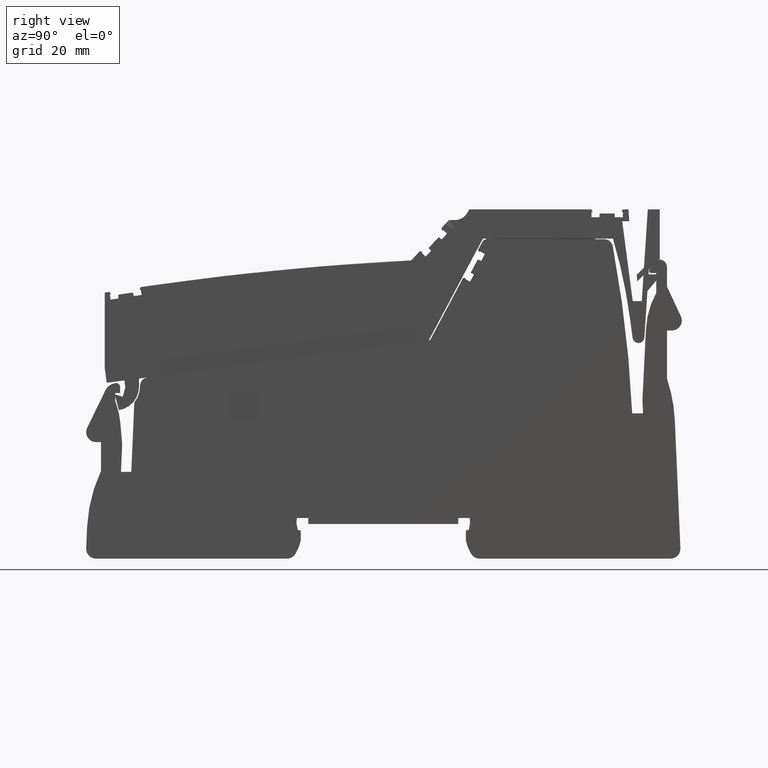
[diagram: clean part render]
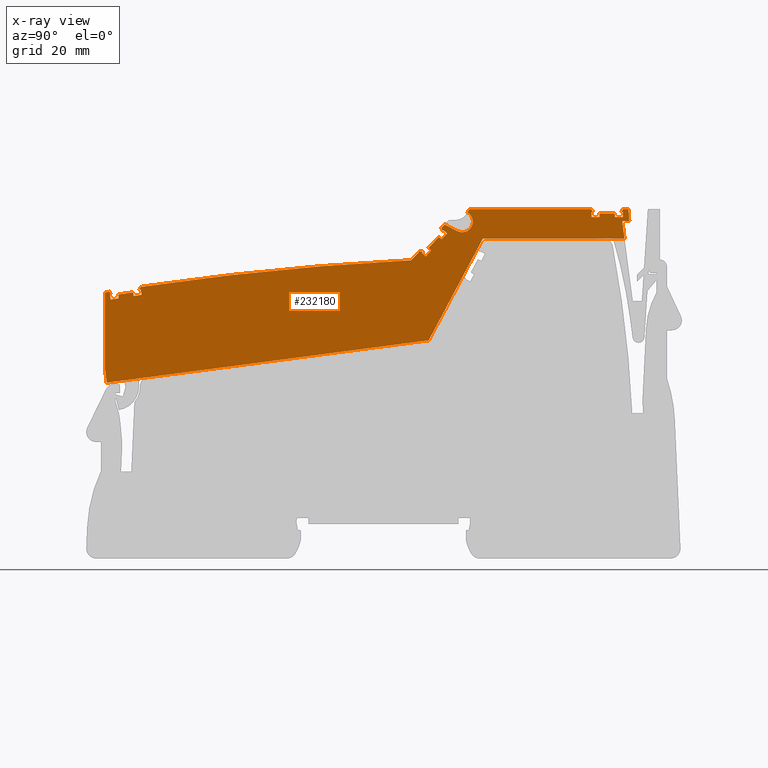
[diagram: x-ray — body ghosted, one internal face saturated and labeled with its STEP entity id]
A machine part, right view, then the same camera in x-ray: the body is ghosted and one INTERNAL B-rep face — a face not visible from any outside direction — is saturated and labeled: STEP entity #232180.
In plain terms, the highlighted planar face has unit normal (1, 0, 0).
Its self-contained STEP definition (entity closure, byte-faithful):
#228080=CARTESIAN_POINT('',(82.6815349965882,79.1094320933787,-35.425));
#228090=DIRECTION('',(0.,-0.,1.));
#228100=DIRECTION('',(0.99144486137381,0.130526192220052,0.));
#228110=AXIS2_PLACEMENT_3D('',#228080,#228090,#228100);
#228120=PLANE('',#228110);
#228130=CARTESIAN_POINT('',(1.4210854715202E-14,123.952271663143,-35.425
));
#228140=DIRECTION('',(0.887010833178214,-0.461748613235049,0.));
#228150=VECTOR('',#228140,1.);
#228160=LINE('',#228130,#228150);
#228170=CARTESIAN_POINT('',(81.7124060542132,81.4154854500132,-35.425));
#228180=VERTEX_POINT('',#228170);
#228190=CARTESIAN_POINT('',(84.2556033003072,80.0915807606427,-35.425));
#228200=VERTEX_POINT('',#228190);
#228210=EDGE_CURVE('',#228180,#228200,#228160,.T.);
#228220=ORIENTED_EDGE('',*,*,#228210,.F.);
#228230=CARTESIAN_POINT('',(85.2483628187626,81.9986540519759,-35.425));
#228240=DIRECTION('',(-8.85927774418128E-33,0.,1.));
#228250=DIRECTION('',(0.99144486137381,0.130526192220052,
8.7834853949519E-33));
#228260=AXIS2_PLACEMENT_3D('',#228230,#228240,#228250);
#228270=CIRCLE('',#228260,2.15000000000011);
#228280=CARTESIAN_POINT('',(86.323362818763,83.8606086701124,-35.425));
#228290=VERTEX_POINT('',#228280);
#228300=EDGE_CURVE('',#228200,#228290,#228270,.T.);
#228310=ORIENTED_EDGE('',*,*,#228300,.F.);
#228320=CARTESIAN_POINT('',(37.9064178286642,-1.4210854715202E-14,
-35.425));
#228330=DIRECTION('',(-0.500000000000028,-0.866025403784423,0.));
#228340=VECTOR('',#228330,1.);
#228350=LINE('',#228320,#228340);
#228360=CARTESIAN_POINT('',(86.6847904689085,84.4866197234245,-35.425));
#228370=VERTEX_POINT('',#228360);
#228380=EDGE_CURVE('',#228370,#228290,#228350,.T.);
#228390=ORIENTED_EDGE('',*,*,#228380,.T.);
#228400=CARTESIAN_POINT('',(1.4210854715202E-14,84.4866197234245,-35.425
));
#228410=DIRECTION('',(-1.,0.,0.));
#228420=VECTOR('',#228410,1.);
#228430=LINE('',#228400,#228420);
#228440=CARTESIAN_POINT('',(111.280097074188,84.4866197234245,-35.425));
#228450=VERTEX_POINT('',#228440);
#228460=EDGE_CURVE('',#228450,#228370,#228430,.T.);
#228470=ORIENTED_EDGE('',*,*,#228460,.T.);
#228480=CARTESIAN_POINT('',(117.476804588516,73.7536074689866,-35.425));
#228490=DIRECTION('',(0.500000000000819,-0.866025403783966,
3.34767537788399E-17));
#228500=VECTOR('',#228490,1.);
#228510=LINE('',#228480,#228500);
#228520=CARTESIAN_POINT('',(111.586092716858,83.9566197234263,-35.425));
#228530=VERTEX_POINT('',#228520);
#228540=EDGE_CURVE('',#228450,#228530,#228510,.T.);
#228550=ORIENTED_EDGE('',*,*,#228540,.F.);
#228560=CARTESIAN_POINT('',(70.5167661636283,83.9566197232154,-35.425));
#228570=DIRECTION('',(-1.,-5.1373627574236E-12,-1.14423563262215E-17));
#228580=VECTOR('',#228570,1.);
#228590=LINE('',#228560,#228580);
#228600=CARTESIAN_POINT('',(111.313785095723,83.956619723425,-35.425));
#228610=VERTEX_POINT('',#228600);
#228620=EDGE_CURVE('',#228530,#228610,#228590,.T.);
#228630=ORIENTED_EDGE('',*,*,#228620,.F.);
#228640=CARTESIAN_POINT('',(111.313785095715,-1.4210854715202E-14,
-35.425));
#228650=DIRECTION('',(-9.34252675222069E-14,-1.,0.));
#228660=VECTOR('',#228650,1.);
#228670=LINE('',#228640,#228660);
#228680=CARTESIAN_POINT('',(111.313785095723,82.8866197234248,-35.425));
#228690=VERTEX_POINT('',#228680);
#228700=EDGE_CURVE('',#228610,#228690,#228670,.T.);
#228710=ORIENTED_EDGE('',*,*,#228700,.F.);
#228720=CARTESIAN_POINT('',(1.4210854715202E-14,82.8866197234115,-35.425
));
#228730=DIRECTION('',(1.,1.19154686117895E-13,0.));
#228740=VECTOR('',#228730,1.);
#228750=LINE('',#228720,#228740);
#228760=CARTESIAN_POINT('',(112.910668598078,82.886619723425,-35.425));
#228770=VERTEX_POINT('',#228760);
#228780=EDGE_CURVE('',#228690,#228770,#228750,.T.);
#228790=ORIENTED_EDGE('',*,*,#228780,.F.);
#228800=CARTESIAN_POINT('',(105.659029014286,-1.4210854715202E-14,
-35.425));
#228810=DIRECTION('',(0.087155742747754,0.996194698091737,0.));
#228820=VECTOR('',#228810,1.);
#228830=LINE('',#228800,#228820);
#228840=CARTESIAN_POINT('',(112.976285095723,83.6366197234249,-35.425));
#228850=VERTEX_POINT('',#228840);
#228860=EDGE_CURVE('',#228770,#228850,#228830,.T.);
#228870=ORIENTED_EDGE('',*,*,#228860,.F.);
#228880=CARTESIAN_POINT('',(70.5588949628286,83.6366197234257,-35.425));
#228890=DIRECTION('',(1.,-1.86795023893183E-14,1.14423563262215E-17));
#228900=VECTOR('',#228890,1.);
#228910=LINE('',#228880,#228900);
#228920=CARTESIAN_POINT('',(115.976285095723,83.6366197234249,-35.425));
#228930=VERTEX_POINT('',#228920);
#228940=EDGE_CURVE('',#228850,#228930,#228910,.T.);
#228950=ORIENTED_EDGE('',*,*,#228940,.F.);
#228960=CARTESIAN_POINT('',(123.293541177125,-1.4210854715202E-14,
-35.425));
#228970=DIRECTION('',(0.0871557427473462,-0.996194698091773,0.));
#228980=VECTOR('',#228970,1.);
#228990=LINE('',#228960,#228980);
#229000=CARTESIAN_POINT('',(116.041901593367,82.8866197234247,-35.425));
#229010=VERTEX_POINT('',#229000);
#229020=EDGE_CURVE('',#228930,#229010,#228990,.T.);
#229030=ORIENTED_EDGE('',*,*,#229020,.F.);
#229040=CARTESIAN_POINT('',(1.4210854715202E-14,82.8866197234154,-35.425
));
#229050=DIRECTION('',(1.,8.06021915877864E-14,0.));
#229060=VECTOR('',#229050,1.);
#229070=LINE('',#229040,#229060);
#229080=CARTESIAN_POINT('',(117.638785095723,82.8866197234249,-35.425));
#229090=VERTEX_POINT('',#229080);
#229100=EDGE_CURVE('',#229010,#229090,#229070,.T.);
#229110=ORIENTED_EDGE('',*,*,#229100,.F.);
#229120=CARTESIAN_POINT('',(117.638785095727,-1.4210854715202E-14,
-35.425));
#229130=DIRECTION('',(-5.49282841433296E-14,1.,0.));
#229140=VECTOR('',#229130,1.);
#229150=LINE('',#229120,#229140);
#229160=CARTESIAN_POINT('',(117.638785095723,83.9566197234248,-35.425));
#229170=VERTEX_POINT('',#229160);
#229180=EDGE_CURVE('',#229090,#229170,#229150,.T.);
#229190=ORIENTED_EDGE('',*,*,#229180,.F.);
#229200=CARTESIAN_POINT('',(70.5167661635693,83.9566197236635,-35.425));
#229210=DIRECTION('',(-1.,5.06689135093552E-12,-1.14423563262215E-17));
#229220=VECTOR('',#229210,1.);
#229230=LINE('',#229200,#229220);
#229240=CARTESIAN_POINT('',(117.366477474588,83.9566197234262,-35.425));
#229250=VERTEX_POINT('',#229240);
#229260=EDGE_CURVE('',#229170,#229250,#229230,.T.);
#229270=ORIENTED_EDGE('',*,*,#229260,.F.);
#229280=CARTESIAN_POINT('',(110.982106139763,72.8985641971313,-35.425));
#229290=DIRECTION('',(0.500000000000253,0.866025403784292,
-2.20343974524871E-17));
#229300=VECTOR('',#229290,1.);
#229310=LINE('',#229280,#229300);
#229320=CARTESIAN_POINT('',(117.672473117258,84.4866197234246,-35.425));
#229330=VERTEX_POINT('',#229320);
#229340=EDGE_CURVE('',#229250,#229330,#229310,.T.);
#229350=ORIENTED_EDGE('',*,*,#229340,.F.);
#229360=CARTESIAN_POINT('',(70.4469903398795,84.4866197234245,-35.425));
#229370=DIRECTION('',(-1.,-3.33066907387547E-15,-1.14423563262215E-17));
#229380=VECTOR('',#229370,1.);
#229390=LINE('',#229360,#229380);
#229400=CARTESIAN_POINT('',(118.776285095723,84.4866197234246,-35.425));
#229410=VERTEX_POINT('',#229400);
#229420=EDGE_CURVE('',#229410,#229330,#229390,.T.);
#229430=ORIENTED_EDGE('',*,*,#229420,.T.);
#229440=CARTESIAN_POINT('',(119.46262829087,74.0150461191697,-35.425));
#229450=DIRECTION('',(-0.0654031292301207,0.997858923238605,
-1.07067800097519E-18));
#229460=VECTOR('',#229450,1.);
#229470=LINE('',#229440,#229460);
#229480=CARTESIAN_POINT('',(118.933589406479,82.0866197234258,-35.425));
#229490=VERTEX_POINT('',#229480);
#229500=EDGE_CURVE('',#229490,#229410,#229470,.T.);
#229510=ORIENTED_EDGE('',*,*,#229500,.T.);
#229520=CARTESIAN_POINT('',(70.7629563340898,82.0866197234204,-35.425));
#229530=DIRECTION('',(-1.,-1.11688436277291E-13,-1.14423563262215E-17));
#229540=VECTOR('',#229530,1.);
#229550=LINE('',#229520,#229540);
#229560=CARTESIAN_POINT('',(117.512908656979,82.0866197234256,-35.425));
#229570=VERTEX_POINT('',#229560);
#229580=EDGE_CURVE('',#229490,#229570,#229550,.T.);
#229590=ORIENTED_EDGE('',*,*,#229580,.F.);
#229600=CARTESIAN_POINT('',(128.319817162075,-1.4210854715202E-14,
-35.425));
#229610=DIRECTION('',(0.130526192220052,-0.99144486137381,0.));
#229620=VECTOR('',#229610,1.);
#229630=LINE('',#229600,#229620);
#229640=CARTESIAN_POINT('',(117.973692398535,78.5866197234246,-35.425));
#229650=VERTEX_POINT('',#229640);
#229660=EDGE_CURVE('',#229570,#229650,#229630,.T.);
#229670=ORIENTED_EDGE('',*,*,#229660,.F.);
#229680=CARTESIAN_POINT('',(71.2237400756451,78.5866197234246,-35.425));
#229690=DIRECTION('',(1.,0.,1.14423563262215E-17));
#229700=VECTOR('',#229690,1.);
#229710=LINE('',#229680,#229700);
#229720=CARTESIAN_POINT('',(89.4233780495348,78.5866197234246,-35.425));
#229730=VERTEX_POINT('',#229720);
#229740=EDGE_CURVE('',#229730,#229650,#229710,.T.);
#229750=ORIENTED_EDGE('',*,*,#229740,.T.);
#229760=CARTESIAN_POINT('',(84.5486179871549,69.4185294618935,-35.425));
#229770=DIRECTION('',(0.469471562785891,0.882947592858927,
1.98252351633153E-18));
#229780=VECTOR('',#229770,1.);
#229790=LINE('',#229760,#229780);
#229800=CARTESIAN_POINT('',(78.5141517634814,58.0693491307922,-35.425));
#229810=VERTEX_POINT('',#229800);
#229820=EDGE_CURVE('',#229810,#229730,#229790,.T.);
#229830=ORIENTED_EDGE('',*,*,#229820,.T.);
#229840=CARTESIAN_POINT('',(74.0030776442306,57.4754549561902,-35.425));
#229850=DIRECTION('',(0.991444861373789,0.130526192220212,
2.03025052721141E-32));
#229860=VECTOR('',#229850,1.);
#229870=LINE('',#229840,#229860);
#229880=CARTESIAN_POINT('',(13.5745133434982,49.5198835403683,-35.425));
#229890=VERTEX_POINT('',#229880);
#229900=EDGE_CURVE('',#229890,#229810,#229870,.T.);
#229910=ORIENTED_EDGE('',*,*,#229900,.T.);
#229920=CARTESIAN_POINT('',(12.2086310606799,59.8947895075835,-35.425));
#229930=DIRECTION('',(0.130526192220052,-0.99144486137381,
-3.08148791101958E-32));
#229940=VECTOR('',#229930,1.);
#229950=LINE('',#229920,#229940);
#229960=CARTESIAN_POINT('',(13.1829347668366,52.4942181245001,-35.425));
#229970=VERTEX_POINT('',#229960);
#229980=EDGE_CURVE('',#229970,#229890,#229950,.T.);
#229990=ORIENTED_EDGE('',*,*,#229980,.T.);
#230000=CARTESIAN_POINT('',(13.1829347668366,60.0230590239077,-35.425));
#230010=DIRECTION('',(8.32667268468867E-17,-1.,-1.38777878078145E-17));
#230020=VECTOR('',#230010,1.);
#230030=LINE('',#230000,#230020);
#230040=CARTESIAN_POINT('',(13.1829347668366,67.701244428714,-35.425));
#230050=VERTEX_POINT('',#230040);
#230060=EDGE_CURVE('',#230050,#229970,#230030,.T.);
#230070=ORIENTED_EDGE('',*,*,#230060,.T.);
#230080=CARTESIAN_POINT('',(104.084452057128,-500.06799932646,-35.425));
#230090=DIRECTION('',(-8.85927774418128E-33,0.,1.));
#230100=DIRECTION('',(0.99144486137381,0.130526192220052,0.));
#230110=AXIS2_PLACEMENT_3D('',#230080,#230090,#230100);
#230120=CIRCLE('',#230110,575.);
#230130=CARTESIAN_POINT('',(14.0966316585303,67.8467761283693,-35.425));
#230140=VERTEX_POINT('',#230130);
#230150=EDGE_CURVE('',#230140,#230050,#230120,.T.);
#230160=ORIENTED_EDGE('',*,*,#230150,.T.);
#230170=CARTESIAN_POINT('',(19.676851164994,60.8779993368489,-35.425));
#230180=DIRECTION('',(0.625050010517978,-0.780584706711242,
2.1035385032723E-17));
#230190=VECTOR('',#230180,1.);
#230200=LINE('',#230170,#230190);
#230210=CARTESIAN_POINT('',(14.4727658909791,67.3770463074278,-35.425));
#230220=VERTEX_POINT('',#230210);
#230230=EDGE_CURVE('',#230140,#230220,#230200,.T.);
#230240=ORIENTED_EDGE('',*,*,#230230,.F.);
#230250=CARTESIAN_POINT('',(71.551517232091,76.0969050392932,-35.425));
#230260=DIRECTION('',(-0.988531191076977,-0.151016834385886,
3.70508301110601E-19));
#230270=VECTOR('',#230260,1.);
#230280=LINE('',#230250,#230270);
#230290=CARTESIAN_POINT('',(14.2035813139184,67.335923272505,-35.425));
#230300=VERTEX_POINT('',#230290);
#230310=EDGE_CURVE('',#230220,#230300,#230280,.T.);
#230320=ORIENTED_EDGE('',*,*,#230310,.F.);
#230330=CARTESIAN_POINT('',(24.4904170405679,-1.4210854715202E-14,
-35.425));
#230340=DIRECTION('',(0.151016834388983,-0.988531191076503,0.));
#230350=VECTOR('',#230340,1.);
#230360=LINE('',#230330,#230350);
#230370=CARTESIAN_POINT('',(14.3651693267146,66.2781948980529,-35.425));
#230380=VERTEX_POINT('',#230370);
#230390=EDGE_CURVE('',#230300,#230380,#230360,.T.);
#230400=ORIENTED_EDGE('',*,*,#230390,.F.);
#230410=CARTESIAN_POINT('',(1.4210854715202E-14,64.0836436114932,-35.425
));
#230420=DIRECTION('',(0.988531191076512,0.151016834388925,0.));
#230430=VECTOR('',#230420,1.);
#230440=LINE('',#230410,#230430);
#230450=CARTESIAN_POINT('',(15.9437384773085,66.5193511894665,-35.425));
#230460=VERTEX_POINT('',#230450);
#230470=EDGE_CURVE('',#230380,#230460,#230440,.T.);
#230480=ORIENTED_EDGE('',*,*,#230470,.F.);
#230490=CARTESIAN_POINT('',(20.2288651749482,-1.4210854715202E-14,
-35.425));
#230500=DIRECTION('',(-0.0642859995531953,0.997931515817316,0.));
#230510=VECTOR('',#230500,1.);
#230520=LINE('',#230490,#230510);
#230530=CARTESIAN_POINT('',(15.8953398060877,67.2706587785318,-35.425));
#230540=VERTEX_POINT('',#230530);
#230550=EDGE_CURVE('',#230460,#230540,#230520,.T.);
#230560=ORIENTED_EDGE('',*,*,#230550,.F.);
#230570=CARTESIAN_POINT('',(71.5932945613605,75.7795747186763,-35.425));
#230580=DIRECTION('',(0.988531191076507,0.151016834388962,
-3.70508301168148E-19));
#230590=VECTOR('',#230580,1.);
#230600=LINE('',#230570,#230590);
#230610=CARTESIAN_POINT('',(18.8609333793172,67.7237092816987,-35.425));
#230620=VERTEX_POINT('',#230610);
#230630=EDGE_CURVE('',#230540,#230620,#230600,.T.);
#230640=ORIENTED_EDGE('',*,*,#230630,.F.);
#230650=CARTESIAN_POINT('',(35.352486206355,-1.4210854715202E-14,-35.425
));
#230660=DIRECTION('',(0.236598339928087,-0.971607547080236,0.));
#230670=VECTOR('',#230660,1.);
#230680=LINE('',#230650,#230670);
#230690=CARTESIAN_POINT('',(19.0390599596794,66.9922200841493,-35.425));
#230700=VERTEX_POINT('',#230690);
#230710=EDGE_CURVE('',#230620,#230700,#230680,.T.);
#230720=ORIENTED_EDGE('',*,*,#230710,.F.);
#230730=CARTESIAN_POINT('',(1.4210854715202E-14,64.0836436114918,-35.425
));
#230740=DIRECTION('',(0.9885311910765,0.151016834389004,0.));
#230750=VECTOR('',#230740,1.);
#230760=LINE('',#230730,#230750);
#230770=CARTESIAN_POINT('',(20.6176291102735,67.2333763755631,-35.425));
#230780=VERTEX_POINT('',#230770);
#230790=EDGE_CURVE('',#230700,#230780,#230760,.T.);
#230800=ORIENTED_EDGE('',*,*,#230790,.F.);
#230810=CARTESIAN_POINT('',(30.8887988590628,-1.4210854715202E-14,
-35.425));
#230820=DIRECTION('',(-0.15101683438897,0.988531191076505,0.));
#230830=VECTOR('',#230820,1.);
#230840=LINE('',#230810,#230830);
#230850=CARTESIAN_POINT('',(20.4560410974773,68.2911047500148,-35.425));
#230860=VERTEX_POINT('',#230850);
#230870=EDGE_CURVE('',#230780,#230860,#230840,.T.);
#230880=ORIENTED_EDGE('',*,*,#230870,.F.);
#230890=CARTESIAN_POINT('',(71.5515172321112,76.0969050391398,-35.425));
#230900=DIRECTION('',(-0.988531191077486,-0.151016834382553,
3.70508301048238E-19));
#230910=VECTOR('',#230900,1.);
#230920=LINE('',#230890,#230910);
#230930=CARTESIAN_POINT('',(20.186856520418,68.2499817150929,-35.425));
#230940=VERTEX_POINT('',#230930);
#230950=EDGE_CURVE('',#230860,#230940,#230920,.T.);
#230960=ORIENTED_EDGE('',*,*,#230950,.F.);
#230970=CARTESIAN_POINT('',(17.182413559422,60.5496003959994,-35.425));
#230980=DIRECTION('',(0.363481180558057,0.931601541100122,
-1.0997552478088E-17));
#230990=VECTOR('',#230980,1.);
#231000=LINE('',#230970,#230990);
#231010=CARTESIAN_POINT('',(20.4055873620427,68.8105884260946,-35.425));
#231020=VERTEX_POINT('',#231010);
#231030=EDGE_CURVE('',#230940,#231020,#231000,.T.);
#231040=ORIENTED_EDGE('',*,*,#231030,.F.);
#231050=CARTESIAN_POINT('',(104.084452057128,-500.06799932646,-35.425));
#231060=DIRECTION('',(-8.85927774418128E-33,0.,1.));
#231070=DIRECTION('',(0.99144486137381,0.130526192220052,0.));
#231080=AXIS2_PLACEMENT_3D('',#231050,#231060,#231070);
#231090=CIRCLE('',#231080,575.);
#231100=CARTESIAN_POINT('',(74.9791020504756,74.1949009213182,-35.425));
#231110=VERTEX_POINT('',#231100);
#231120=EDGE_CURVE('',#231110,#231020,#231090,.T.);
#231130=ORIENTED_EDGE('',*,*,#231120,.T.);
#231140=CARTESIAN_POINT('',(72.1949828292245,71.2092985834693,-35.425));
#231150=DIRECTION('',(-0.681998360062363,-0.731353701619297,
-2.53969612628868E-19));
#231160=VECTOR('',#231150,1.);
#231170=LINE('',#231140,#231160);
#231180=CARTESIAN_POINT('',(76.688235497364,76.0277221510188,-35.425));
#231190=VERTEX_POINT('',#231180);
#231200=EDGE_CURVE('',#231190,#231110,#231170,.T.);
#231210=ORIENTED_EDGE('',*,*,#231200,.T.);
#231220=CARTESIAN_POINT('',(71.3998893619735,77.248633057342,-35.425));
#231230=DIRECTION('',(0.974370064785244,-0.224951054343824,
3.6059170670998E-17));
#231240=VECTOR('',#231230,1.);
#231250=LINE('',#231220,#231240);
#231260=CARTESIAN_POINT('',(77.2845414857078,75.8900540661325,-35.425));
#231270=VERTEX_POINT('',#231260);
#231280=EDGE_CURVE('',#231190,#231270,#231250,.T.);
#231290=ORIENTED_EDGE('',*,*,#231280,.F.);
#231300=CARTESIAN_POINT('',(72.2846363775469,70.5283122750789,-35.425));
#231310=DIRECTION('',(-0.681998360064581,-0.731353701617229,
-2.53969612900505E-19));
#231320=VECTOR('',#231310,1.);
#231330=LINE('',#231300,#231320);
#231340=CARTESIAN_POINT('',(77.0988281346601,75.6909008794362,-35.425));
#231350=VERTEX_POINT('',#231340);
#231360=EDGE_CURVE('',#231270,#231350,#231330,.T.);
#231370=ORIENTED_EDGE('',*,*,#231360,.F.);
#231380=CARTESIAN_POINT('',(1.4210854715202E-14,147.586721238526,-35.425
));
#231390=DIRECTION('',(0.731353701619242,-0.681998360062422,0.));
#231400=VECTOR('',#231390,1.);
#231410=LINE('',#231380,#231400);
#231420=CARTESIAN_POINT('',(77.8813765953927,74.9611626341694,-35.425));
#231430=VERTEX_POINT('',#231420);
#231440=EDGE_CURVE('',#231350,#231430,#231410,.T.);
#231450=ORIENTED_EDGE('',*,*,#231440,.F.);
#231460=CARTESIAN_POINT('',(7.97896156459622,-1.4210854715202E-14,
-35.425));
#231470=DIRECTION('',(0.681998360062575,0.731353701619099,0.));
#231480=VECTOR('',#231470,1.);
#231490=LINE('',#231460,#231480);
#231500=CARTESIAN_POINT('',(78.9704485252099,76.1290492946714,-35.425));
#231510=VERTEX_POINT('',#231500);
#231520=EDGE_CURVE('',#231430,#231510,#231490,.T.);
#231530=ORIENTED_EDGE('',*,*,#231520,.F.);
#231540=CARTESIAN_POINT('',(147.517352398626,-1.4210854715202E-14,
-35.425));
#231550=DIRECTION('',(-0.669130606358558,0.743144825477665,0.));
#231560=VECTOR('',#231550,1.);
#231570=LINE('',#231540,#231560);
#231580=CARTESIAN_POINT('',(78.4666835927825,76.6885369331583,-35.425));
#231590=VERTEX_POINT('',#231580);
#231600=EDGE_CURVE('',#231510,#231590,#231570,.T.);
#231610=ORIENTED_EDGE('',*,*,#231600,.F.);
#231620=CARTESIAN_POINT('',(72.338766821823,70.1171507303451,-35.425));
#231630=DIRECTION('',(0.681998360062455,0.731353701619211,
2.53969612640089E-19));
#231640=VECTOR('',#231630,1.);
#231650=LINE('',#231620,#231640);
#231660=CARTESIAN_POINT('',(80.5126786729696,78.8825980380156,-35.425));
#231670=VERTEX_POINT('',#231660);
#231680=EDGE_CURVE('',#231590,#231670,#231650,.T.);
#231690=ORIENTED_EDGE('',*,*,#231680,.F.);
#231700=CARTESIAN_POINT('',(1.4210854715202E-14,141.785996636754,-35.425
));
#231710=DIRECTION('',(0.788010753606755,-0.615661475325616,0.));
#231720=VECTOR('',#231710,1.);
#231730=LINE('',#231700,#231720);
#231740=CARTESIAN_POINT('',(81.1059442929708,78.4190881364081,-35.425));
#231750=VERTEX_POINT('',#231740);
#231760=EDGE_CURVE('',#231670,#231750,#231730,.T.);
#231770=ORIENTED_EDGE('',*,*,#231760,.F.);
#231780=CARTESIAN_POINT('',(7.9789615646208,-1.4210854715202E-14,-35.425
));
#231790=DIRECTION('',(0.681998360062451,0.731353701619215,0.));
#231800=VECTOR('',#231790,1.);
#231810=LINE('',#231780,#231800);
#231820=CARTESIAN_POINT('',(82.1950162227881,79.5869747969106,-35.425));
#231830=VERTEX_POINT('',#231820);
#231840=EDGE_CURVE('',#231750,#231830,#231810,.T.);
#231850=ORIENTED_EDGE('',*,*,#231840,.F.);
#231860=CARTESIAN_POINT('',(1.4210854715202E-14,156.235067429974,-35.425
));
#231870=DIRECTION('',(-0.731353701619242,0.681998360062422,0.));
#231880=VECTOR('',#231870,1.);
#231890=LINE('',#231860,#231880);
#231900=CARTESIAN_POINT('',(81.4124677620555,80.3167130421774,-35.425));
#231910=VERTEX_POINT('',#231900);
#231920=EDGE_CURVE('',#231830,#231910,#231890,.T.);
#231930=ORIENTED_EDGE('',*,*,#231920,.F.);
#231940=CARTESIAN_POINT('',(72.2846363775451,70.5283122750928,-35.425));
#231950=DIRECTION('',(-0.681998360064199,-0.731353701617584,
-2.53969612853764E-19));
#231960=VECTOR('',#231950,1.);
#231970=LINE('',#231940,#231960);
#231980=CARTESIAN_POINT('',(81.2267544110084,80.1175598554815,-35.425));
#231990=VERTEX_POINT('',#231980);
#232000=EDGE_CURVE('',#231910,#231990,#231970,.T.);
#232010=ORIENTED_EDGE('',*,*,#232000,.F.);
#232020=CARTESIAN_POINT('',(84.4997434735127,69.4120950101042,-35.425));
#232030=DIRECTION('',(-0.29237170472236,0.956304755963151,
5.82816236513809E-18));
#232040=VECTOR('',#232030,1.);
#232050=LINE('',#232020,#232040);
#232060=CARTESIAN_POINT('',(81.0478254756385,80.7028100322593,-35.425));
#232070=VERTEX_POINT('',#232060);
#232080=EDGE_CURVE('',#231990,#232070,#232050,.T.);
#232090=ORIENTED_EDGE('',*,*,#232080,.F.);
#232100=CARTESIAN_POINT('',(5.79123762688281,-1.4210854715202E-14,
-35.425));
#232110=DIRECTION('',(0.681998360062363,0.731353701619297,0.));
#232120=VECTOR('',#232110,1.);
#232130=LINE('',#232100,#232120);
#232140=EDGE_CURVE('',#232070,#228180,#232130,.T.);
#232150=ORIENTED_EDGE('',*,*,#232140,.F.);
#232160=EDGE_LOOP('',(#232150,#232090,#232010,#231930,#231850,#231770,
#231690,#231610,#231530,#231450,#231370,#231290,#231210,#231130,#231040,
#230960,#230880,#230800,#230720,#230640,#230560,#230480,#230400,#230320,
#230240,#230160,#230070,#229990,#229910,#229830,#229750,#229670,#229590,
#229510,#229430,#229350,#229270,#229190,#229110,#229030,#228950,#228870,
#228790,#228710,#228630,#228550,#228470,#228390,#228310,#228220));
#232170=FACE_OUTER_BOUND('',#232160,.T.);
#232180=ADVANCED_FACE('',(#232170),#228120,.T.);